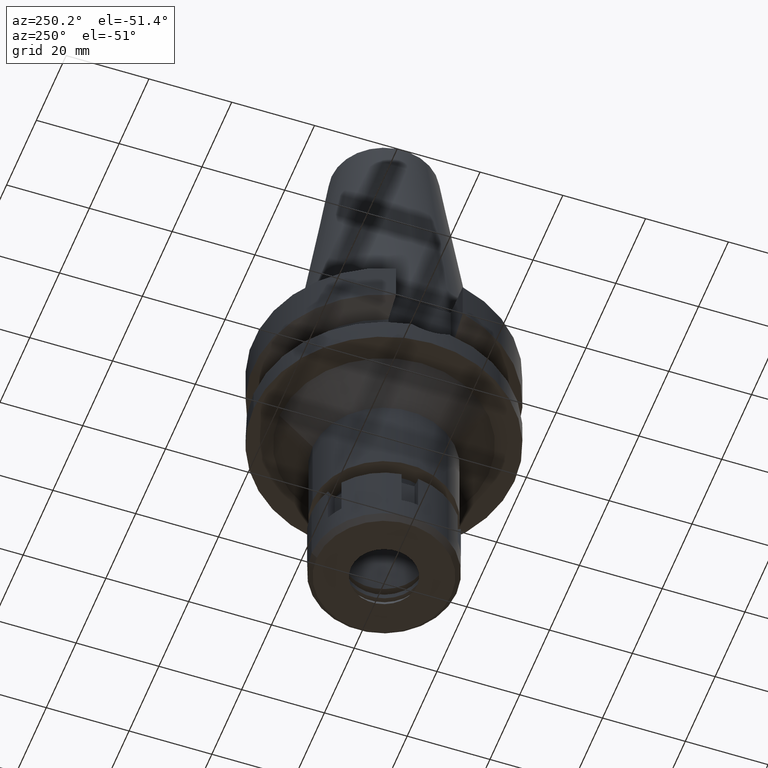
[diagram: clean part render]
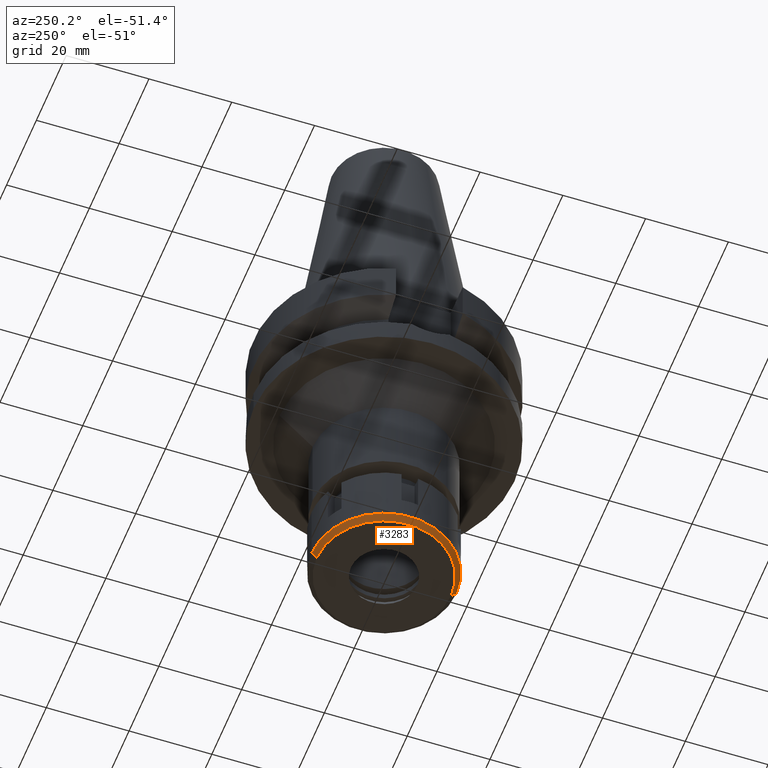
[diagram: same view with one face highlighted and labeled with its STEP entity id]
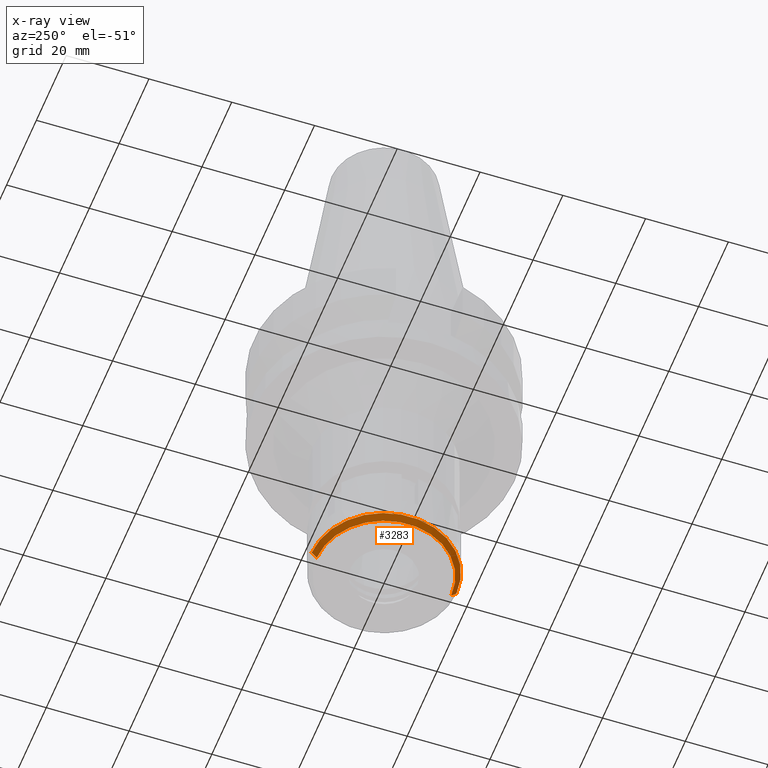
[diagram: x-ray of the same camera — body ghosted, the highlighted face saturated]
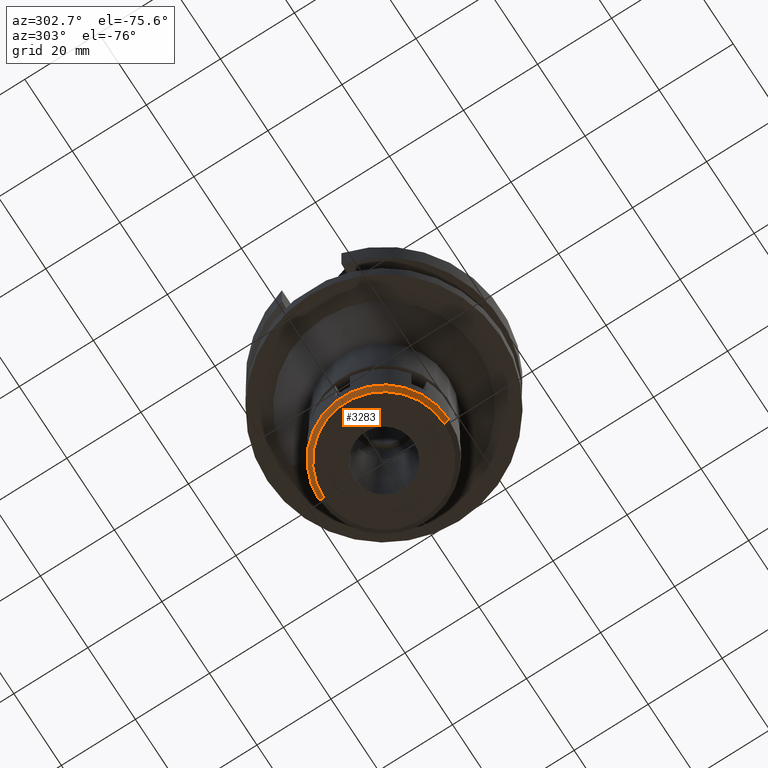
[diagram: same view with one face highlighted and labeled with its STEP entity id]
A machine part, auxiliary view. The second image highlights one B-rep face of the part: STEP entity #3283.
The next image is the same camera in x-ray: the body ghosted, the highlighted face saturated — about 0% of this face is hidden behind the body in this view.
A second angle (auxiliary view) of the same face is appended — the face is thin or edge-on in the first view.
In plain terms, the highlighted conical surface has half-angle 45 deg.
Its self-contained STEP definition (entity closure, byte-faithful):
#110 = CIRCLE ( 'NONE', #1059, 17.50000000000000000 ) ;
#130 = FACE_OUTER_BOUND ( 'NONE', #1321, .T. ) ;
#146 = CARTESIAN_POINT ( 'NONE',  ( 0.0000000000000000000, 0.0000000000000000000, -15.37500000000000000 ) ) ;
#158 = AXIS2_PLACEMENT_3D ( 'NONE', #1980, #2510, #1227 ) ;
#273 = CARTESIAN_POINT ( 'NONE',  ( 0.0000000000000000000, 16.25000000000000000, -16.00000000000000000 ) ) ;
#291 = CARTESIAN_POINT ( 'NONE',  ( 0.0000000000000000000, -17.50000000000000000, -14.75000000000000000 ) ) ;
#339 = EDGE_CURVE ( 'NONE', #1172, #2967, #1366, .T. ) ;
#411 = DIRECTION ( 'NONE',  ( 0.0000000000000000000, 1.000000000000000000, 0.0000000000000000000 ) ) ;
#788 = ORIENTED_EDGE ( 'NONE', *, *, #944, .T. ) ;
#804 = ORIENTED_EDGE ( 'NONE', *, *, #2551, .F. ) ;
#944 = EDGE_CURVE ( 'NONE', #2967, #2366, #1847, .T. ) ;
#976 = CARTESIAN_POINT ( 'NONE',  ( 0.0000000000000000000, -16.25000000000000000, -16.00000000000000000 ) ) ;
#1040 = VECTOR ( 'NONE', #1080, 1000.000000000000114 ) ;
#1059 = AXIS2_PLACEMENT_3D ( 'NONE', #2306, #1255, #411 ) ;
#1080 = DIRECTION ( 'NONE',  ( 0.0000000000000000000, -0.7071067811865474617, -0.7071067811865474617 ) ) ;
#1164 = CARTESIAN_POINT ( 'NONE',  ( 0.0000000000000000000, 17.50000000000000000, -14.75000000000000000 ) ) ;
#1172 = VERTEX_POINT ( 'NONE', #1164 ) ;
#1218 = CARTESIAN_POINT ( 'NONE',  ( 0.0000000000000000000, -17.50000000000000000, -14.75000000000000000 ) ) ;
#1227 = DIRECTION ( 'NONE',  ( 0.0000000000000000000, 1.000000000000000000, 0.0000000000000000000 ) ) ;
#1255 = DIRECTION ( 'NONE',  ( 0.0000000000000000000, 0.0000000000000000000, 1.000000000000000000 ) ) ;
#1263 = DIRECTION ( 'NONE',  ( 0.0000000000000000000, 0.0000000000000000000, 1.000000000000000000 ) ) ;
#1294 = AXIS2_PLACEMENT_3D ( 'NONE', #146, #1263, #3466 ) ;
#1321 = EDGE_LOOP ( 'NONE', ( #788, #804, #1941, #1684 ) ) ;
#1366 = LINE ( 'NONE', #3536, #1040 ) ;
#1684 = ORIENTED_EDGE ( 'NONE', *, *, #339, .T. ) ;
#1847 = CIRCLE ( 'NONE', #158, 16.25000000000000000 ) ;
#1941 = ORIENTED_EDGE ( 'NONE', *, *, #2686, .F. ) ;
#1980 = CARTESIAN_POINT ( 'NONE',  ( 0.0000000000000000000, 0.0000000000000000000, -16.00000000000000000 ) ) ;
#2188 = LINE ( 'NONE', #1218, #2627 ) ;
#2287 = DIRECTION ( 'NONE',  ( 0.0000000000000000000, 0.7071067811865474617, -0.7071067811865474617 ) ) ;
#2306 = CARTESIAN_POINT ( 'NONE',  ( 0.0000000000000000000, 0.0000000000000000000, -14.75000000000000000 ) ) ;
#2366 = VERTEX_POINT ( 'NONE', #976 ) ;
#2510 = DIRECTION ( 'NONE',  ( 0.0000000000000000000, 0.0000000000000000000, 1.000000000000000000 ) ) ;
#2551 = EDGE_CURVE ( 'NONE', #3095, #2366, #2188, .T. ) ;
#2627 = VECTOR ( 'NONE', #2287, 1000.000000000000114 ) ;
#2686 = EDGE_CURVE ( 'NONE', #1172, #3095, #110, .T. ) ;
#2812 = CONICAL_SURFACE ( 'NONE', #1294, 16.87500000000000000, 0.7853981633972997312 ) ;
#2967 = VERTEX_POINT ( 'NONE', #273 ) ;
#3095 = VERTEX_POINT ( 'NONE', #291 ) ;
#3283 = ADVANCED_FACE ( 'NONE', ( #130 ), #2812, .T. ) ;
#3466 = DIRECTION ( 'NONE',  ( 0.0000000000000000000, 1.000000000000000000, 0.0000000000000000000 ) ) ;
#3536 = CARTESIAN_POINT ( 'NONE',  ( 0.0000000000000000000, 17.50000000000000000, -14.75000000000000000 ) ) ;